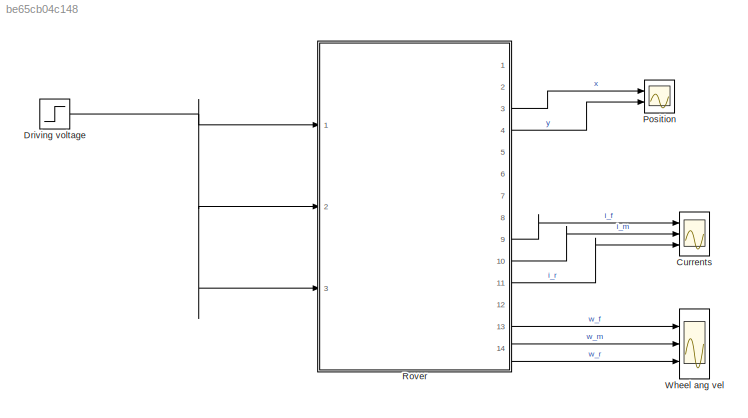
MODEL slx_be65cb04c148
KIND model
CONFIG AbsTol = auto
CONFIG EnableMultiTasking = off
CONFIG FixedStep = auto
CONFIG MaxStep = auto
CONFIG MinStep = auto
CONFIG RelTol = 1e-3
CONFIG SampleTimeConstraint = Unconstrained
CONFIG SolverName = ode23t
CONFIG StartTime = 0.0
CONFIG StopTime = 160
BLOCK [Scope] Currents
  Floating = off
  NumInputPorts = 3
  Ports = [3]
  ScopeSpecificationString = Simulink.scopes.TimeScopeBlockCfg('CurrentConfiguration', extmgr.ConfigurationSet(extmgr.Configuration('Core','General UI',true),extmgr.Configuration('Core','Source UI',true),extmgr.Configuration('Sources','WiredSimulink',true,'DataLoggingVariableName','ScopeData1'),extmgr.Configuration('Visuals','Time Domain',true,'SerializedDisplays',{struct('MinYLimReal','-9.70376','MaxYLimReal','18.45162','YLa...<+1461ch>
BLOCK [Step] Driving voltage
  After = 48
  SampleTime = 0
  Time = 5
BLOCK [Scope] Position
  Floating = off
  NumInputPorts = 2
  Ports = [2]
  ScopeSpecificationString = Simulink.scopes.TimeScopeBlockCfg('CurrentConfiguration', extmgr.ConfigurationSet(extmgr.Configuration('Core','General UI',true),extmgr.Configuration('Core','Source UI',true),extmgr.Configuration('Sources','WiredSimulink',true),extmgr.Configuration('Visuals','Time Domain',true,'SerializedDisplays',{struct('MinYLimReal','-0.56629','MaxYLimReal','5.06434','YLabelReal','','MinYLimMag','0.00000','MaxY...<+1721ch>
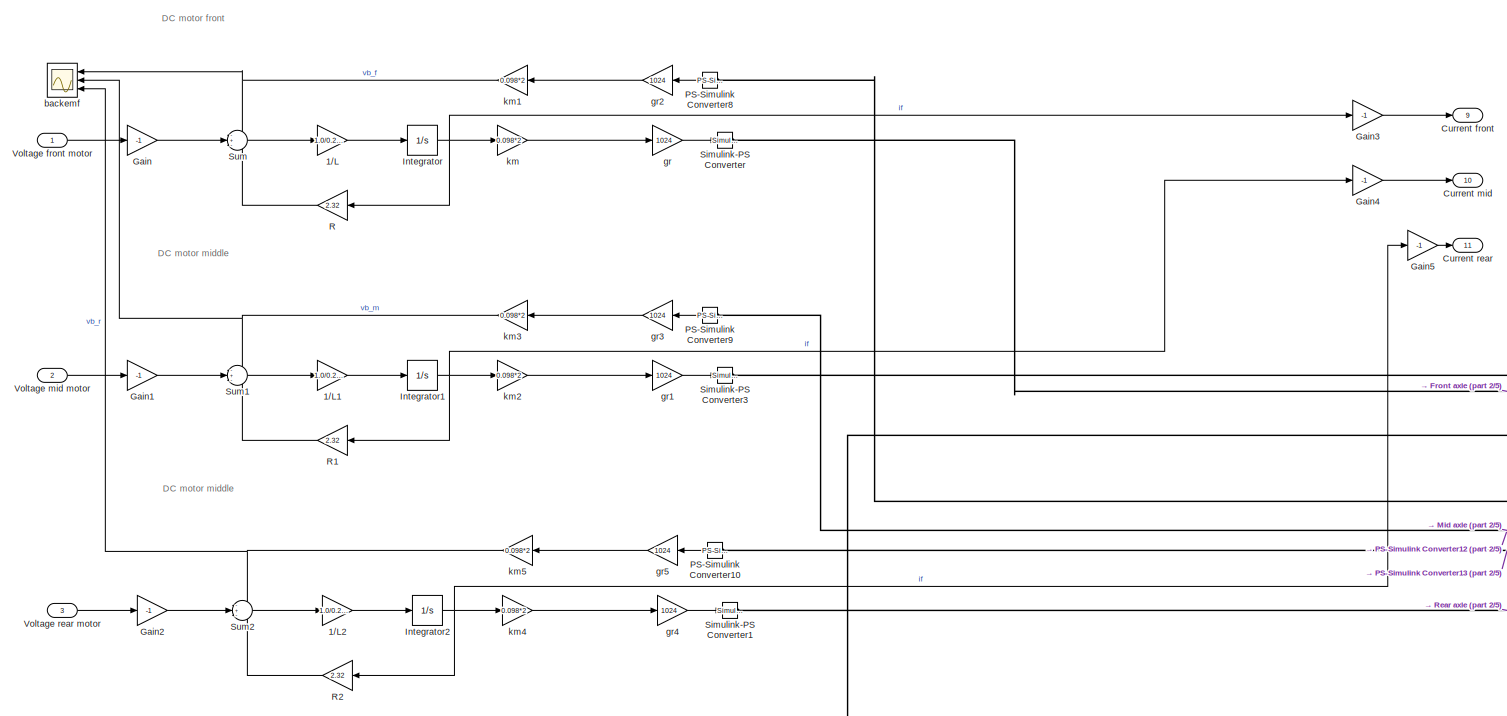
[diagram: Rover - part 1/5, top left region]
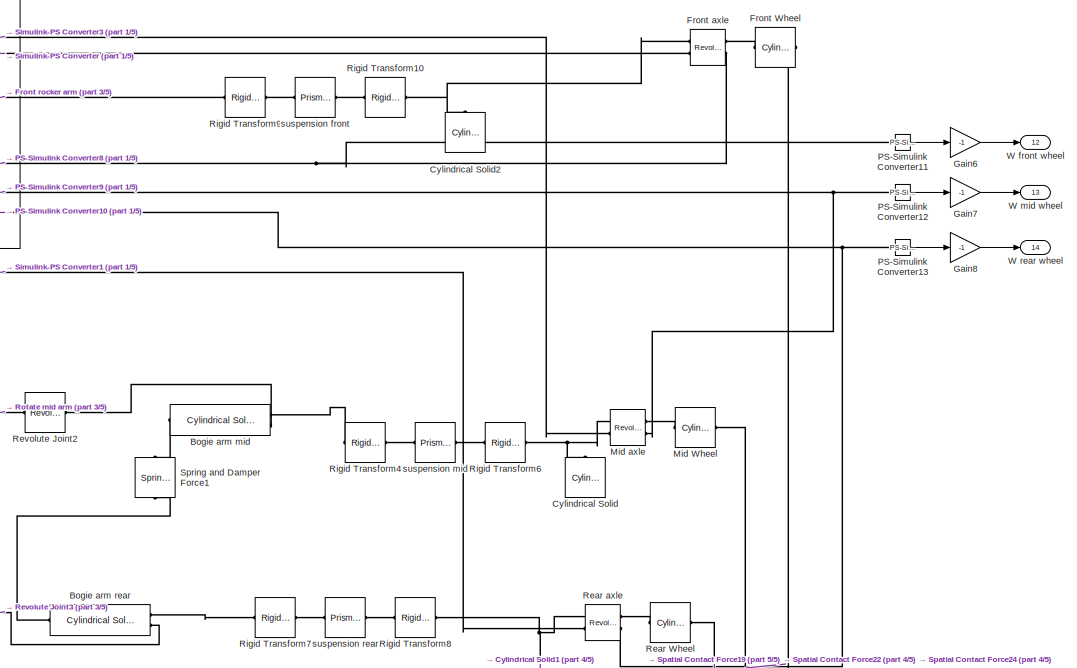
[diagram: Rover - part 2/5, middle right region]
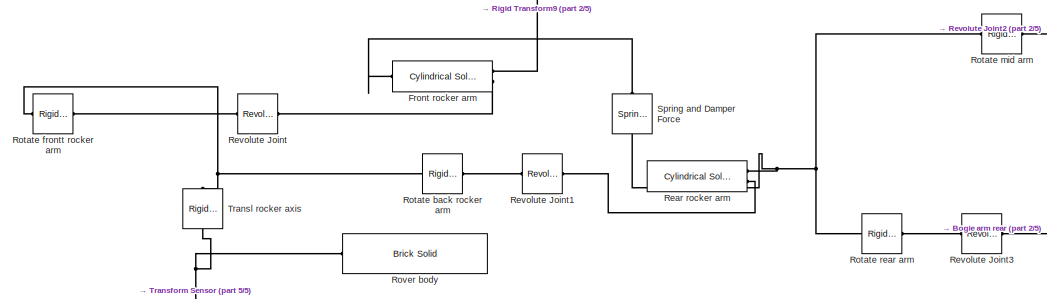
[diagram: Rover - part 3/5, central region]
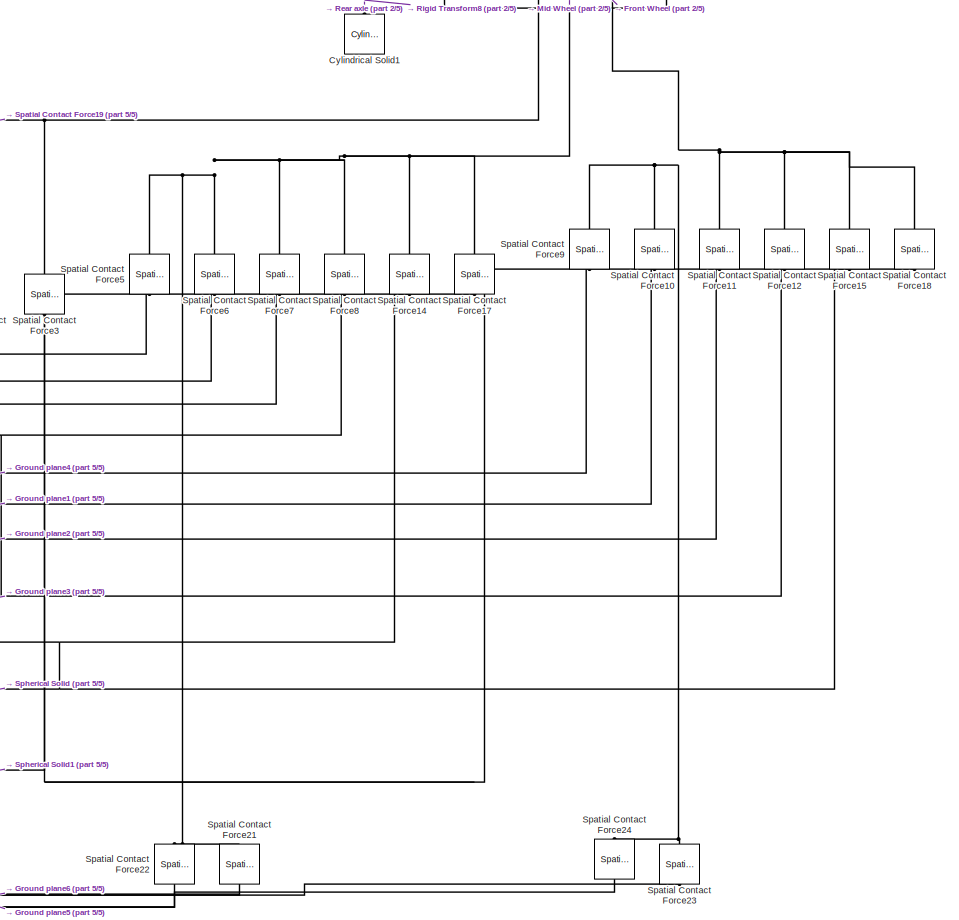
[diagram: Rover - part 4/5, bottom right region]
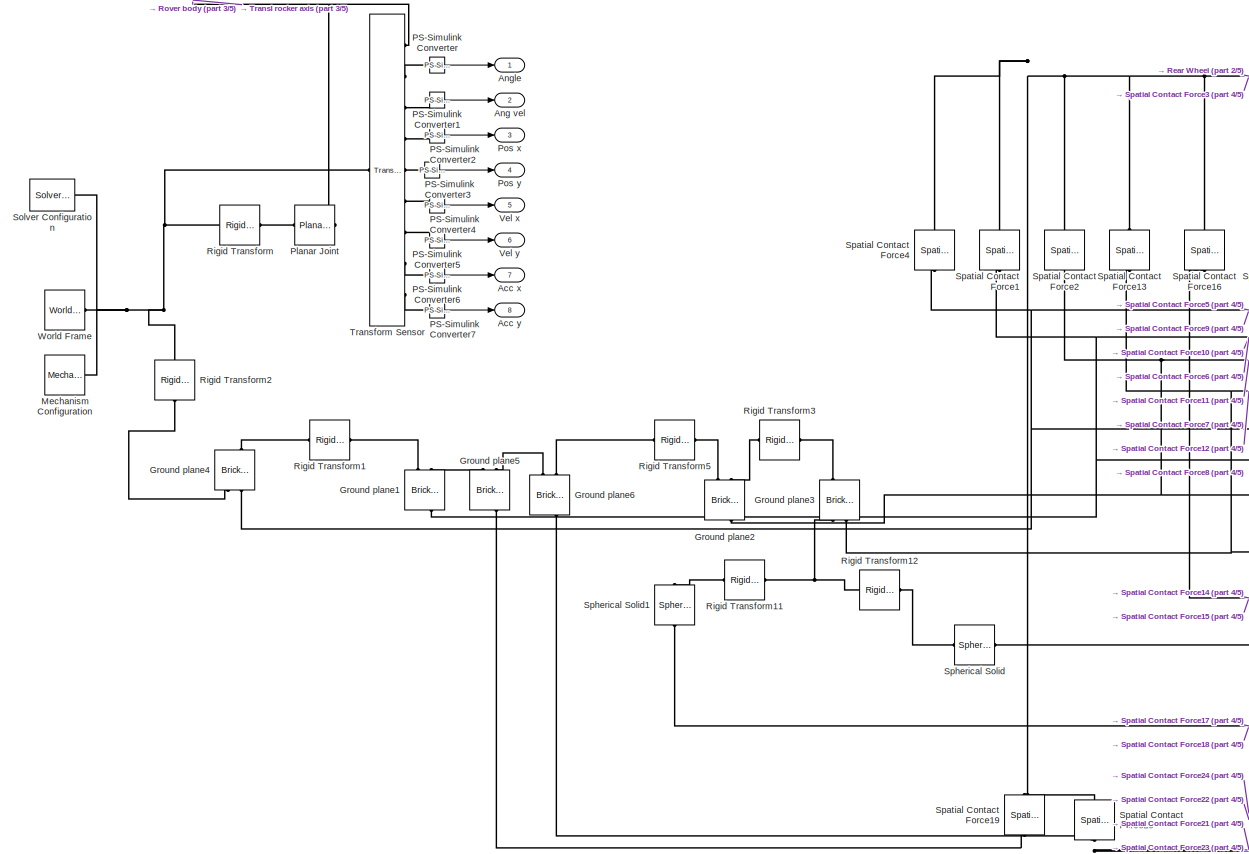
[diagram: Rover - part 5/5, bottom center region]
BLOCK [SubSystem] Rover
  Ports = [3, 14]
  RequestExecContextInheritance = off
BLOCK [Gain] Rover/1//L
  Gain = 1.0/0.238e-3
BLOCK [Gain] Rover/1//L1
  Gain = 1.0/0.238e-3
BLOCK [Gain] Rover/1//L2
  Gain = 1.0/0.238e-3
BLOCK [Outport] Rover/Acc x
  Port = 7
BLOCK [Outport] Rover/Acc y
  Port = 8
BLOCK [Outport] Rover/Ang vel
  Port = 2
BLOCK [Outport] Rover/Angle
BLOCK [Reference] Rover/Bogie arm mid  REF=sm_lib/Body Elements/Cylindrical Solid
  NameLocation = top
  Ports = [0, 0, 0, 0, 0, 2, 1]
  SourceBlock = sm_lib/Body Elements/Cylindrical Solid
  SourceProductBaseCode = MS
  SourceType = Cylindrical Solid
BLOCK [Reference] Rover/Bogie arm rear  REF=sm_lib/Body Elements/Cylindrical Solid
  NameLocation = top
  Ports = [0, 0, 0, 0, 0, 2, 1]
  SourceBlock = sm_lib/Body Elements/Cylindrical Solid
  SourceProductBaseCode = MS
  SourceType = Cylindrical Solid
BLOCK [Outport] Rover/Current front
  Port = 9
BLOCK [Outport] Rover/Current mid
  Port = 10
BLOCK [Outport] Rover/Current rear
  Port = 11
BLOCK [Reference] Rover/Cylindrical Solid  REF=sm_lib/Body Elements/Cylindrical Solid
  NameLocation = right
  Ports = [0, 0, 0, 0, 0, 0, 1]
  SourceBlock = sm_lib/Body Elements/Cylindrical Solid
  SourceProductBaseCode = MS
  SourceType = Cylindrical Solid
BLOCK [Reference] Rover/Cylindrical Solid1  REF=sm_lib/Body Elements/Cylindrical Solid
  NameLocation = right
  Ports = [0, 0, 0, 0, 0, 0, 1]
  SourceBlock = sm_lib/Body Elements/Cylindrical Solid
  SourceProductBaseCode = MS
  SourceType = Cylindrical Solid
BLOCK [Reference] Rover/Cylindrical Solid2  REF=sm_lib/Body Elements/Cylindrical Solid
  NameLocation = right
  Ports = [0, 0, 0, 0, 0, 0, 1]
  SourceBlock = sm_lib/Body Elements/Cylindrical Solid
  SourceProductBaseCode = MS
  SourceType = Cylindrical Solid
BLOCK [Reference] Rover/Front Wheel  REF=sm_lib/Body Elements/Cylindrical Solid
  NameLocation = top
  Ports = [0, 0, 0, 0, 0, 1, 1]
  SourceBlock = sm_lib/Body Elements/Cylindrical Solid
  SourceProductBaseCode = MS
  SourceType = Cylindrical Solid
BLOCK [Reference] Rover/Front axle  REF=sm_lib/Joints/Revolute Joint
  Ports = [0, 0, 0, 0, 0, 2, 2]
  SourceBlock = sm_lib/Joints/Revolute Joint
  SourceProductBaseCode = MS
  SourceType = Revolute Joint
BLOCK [Reference] Rover/Front rocker arm  REF=sm_lib/Body Elements/Cylindrical Solid
  NameLocation = top
  Ports = [0, 0, 0, 0, 0, 2, 1]
  SourceBlock = sm_lib/Body Elements/Cylindrical Solid
  SourceProductBaseCode = MS
  SourceType = Cylindrical Solid
BLOCK [Gain] Rover/Gain
  Gain = -1
BLOCK [Gain] Rover/Gain1
  Gain = -1
BLOCK [Gain] Rover/Gain2
  Gain = -1
BLOCK [Gain] Rover/Gain3
  Gain = -1
BLOCK [Gain] Rover/Gain4
  Gain = -1
BLOCK [Gain] Rover/Gain5
  Gain = -1
BLOCK [Gain] Rover/Gain6
  Gain = -1
BLOCK [Gain] Rover/Gain7
  Gain = -1
BLOCK [Gain] Rover/Gain8
  Gain = -1
BLOCK [Reference] Rover/Ground plane1  REF=sm_lib/Body Elements/Brick Solid
  NameLocation = left
  Ports = [0, 0, 0, 0, 0, 2, 2]
  SourceBlock = sm_lib/Body Elements/Brick Solid
  SourceProductBaseCode = MS
  SourceType = Brick Solid
BLOCK [Reference] Rover/Ground plane2  REF=sm_lib/Body Elements/Brick Solid
  NameLocation = left
  Ports = [0, 0, 0, 0, 0, 2, 2]
  SourceBlock = sm_lib/Body Elements/Brick Solid
  SourceProductBaseCode = MS
  SourceType = Brick Solid
BLOCK [Reference] Rover/Ground plane3  REF=sm_lib/Body Elements/Brick Solid
  NameLocation = left
  Ports = [0, 0, 0, 0, 0, 2, 2]
  SourceBlock = sm_lib/Body Elements/Brick Solid
  SourceProductBaseCode = MS
  SourceType = Brick Solid
BLOCK [Reference] Rover/Ground plane4  REF=sm_lib/Body Elements/Brick Solid
  NameLocation = left
  Ports = [0, 0, 0, 0, 0, 2, 2]
  SourceBlock = sm_lib/Body Elements/Brick Solid
  SourceProductBaseCode = MS
  SourceType = Brick Solid
BLOCK [Reference] Rover/Ground plane5  REF=sm_lib/Body Elements/Brick Solid
  NameLocation = left
  Ports = [0, 0, 0, 0, 0, 2, 2]
  SourceBlock = sm_lib/Body Elements/Brick Solid
  SourceProductBaseCode = MS
  SourceType = Brick Solid
BLOCK [Reference] Rover/Ground plane6  REF=sm_lib/Body Elements/Brick Solid
  NameLocation = top
  Ports = [0, 0, 0, 0, 0, 2, 2]
  SourceBlock = sm_lib/Body Elements/Brick Solid
  SourceProductBaseCode = MS
  SourceType = Brick Solid
BLOCK [Integrator] Rover/Integrator
  Ports = [1, 1]
BLOCK [Integrator] Rover/Integrator1
  Ports = [1, 1]
BLOCK [Integrator] Rover/Integrator2
  Ports = [1, 1]
BLOCK [Reference] Rover/Mechanism Configuration  REF=sm_lib/Utilities/Mechanism
Configuration
  Ports = [0, 0, 0, 0, 0, 0, 1]
  SourceBlock = sm_lib/Utilities/Mechanism\nConfiguration
  SourceProductBaseCode = MS
  SourceType = Mechanism\nConfiguration
BLOCK [Reference] Rover/Mid Wheel  REF=sm_lib/Body Elements/Cylindrical Solid
  NameLocation = top
  Ports = [0, 0, 0, 0, 0, 1, 1]
  SourceBlock = sm_lib/Body Elements/Cylindrical Solid
  SourceProductBaseCode = MS
  SourceType = Cylindrical Solid
BLOCK [Reference] Rover/Mid axle  REF=sm_lib/Joints/Revolute Joint
  Ports = [0, 0, 0, 0, 0, 2, 2]
  SourceBlock = sm_lib/Joints/Revolute Joint
  SourceProductBaseCode = MS
  SourceType = Revolute Joint
BLOCK [Reference] Rover/PS-Simulink Converter  REF=nesl_utility/PS-Simulink
Converter
  Ports = [0, 1, 0, 0, 0, 1]
  SourceBlock = nesl_utility/PS-Simulink\nConverter
  SourceProductBaseCode = PW,SS
  SourceType = PS-Simulink\nConverter
BLOCK [Reference] Rover/PS-Simulink Converter1  REF=nesl_utility/PS-Simulink
Converter
  Ports = [0, 1, 0, 0, 0, 1]
  SourceBlock = nesl_utility/PS-Simulink\nConverter
  SourceProductBaseCode = PW,SS
  SourceType = PS-Simulink\nConverter
BLOCK [Reference] Rover/PS-Simulink Converter10  REF=nesl_utility/PS-Simulink
Converter
  NameLocation = top
  Ports = [0, 1, 0, 0, 0, 1]
  SourceBlock = nesl_utility/PS-Simulink\nConverter
  SourceProductBaseCode = PW,SS
  SourceType = PS-Simulink\nConverter
BLOCK [Reference] Rover/PS-Simulink Converter11  REF=nesl_utility/PS-Simulink
Converter
  Ports = [0, 1, 0, 0, 0, 1]
  SourceBlock = nesl_utility/PS-Simulink\nConverter
  SourceProductBaseCode = PW,SS
  SourceType = PS-Simulink\nConverter
BLOCK [Reference] Rover/PS-Simulink Converter12  REF=nesl_utility/PS-Simulink
Converter
  Ports = [0, 1, 0, 0, 0, 1]
  SourceBlock = nesl_utility/PS-Simulink\nConverter
  SourceProductBaseCode = PW,SS
  SourceType = PS-Simulink\nConverter
BLOCK [Reference] Rover/PS-Simulink Converter13  REF=nesl_utility/PS-Simulink
Converter
  Ports = [0, 1, 0, 0, 0, 1]
  SourceBlock = nesl_utility/PS-Simulink\nConverter
  SourceProductBaseCode = PW,SS
  SourceType = PS-Simulink\nConverter
BLOCK [Reference] Rover/PS-Simulink Converter2  REF=nesl_utility/PS-Simulink
Converter
  Ports = [0, 1, 0, 0, 0, 1]
  SourceBlock = nesl_utility/PS-Simulink\nConverter
  SourceProductBaseCode = PW,SS
  SourceType = PS-Simulink\nConverter
BLOCK [Reference] Rover/PS-Simulink Converter3  REF=nesl_utility/PS-Simulink
Converter
  Ports = [0, 1, 0, 0, 0, 1]
  SourceBlock = nesl_utility/PS-Simulink\nConverter
  SourceProductBaseCode = PW,SS
  SourceType = PS-Simulink\nConverter
BLOCK [Reference] Rover/PS-Simulink Converter4  REF=nesl_utility/PS-Simulink
Converter
  Ports = [0, 1, 0, 0, 0, 1]
  SourceBlock = nesl_utility/PS-Simulink\nConverter
  SourceProductBaseCode = PW,SS
  SourceType = PS-Simulink\nConverter
BLOCK [Reference] Rover/PS-Simulink Converter5  REF=nesl_utility/PS-Simulink
Converter
  Ports = [0, 1, 0, 0, 0, 1]
  SourceBlock = nesl_utility/PS-Simulink\nConverter
  SourceProductBaseCode = PW,SS
  SourceType = PS-Simulink\nConverter
BLOCK [Reference] Rover/PS-Simulink Converter6  REF=nesl_utility/PS-Simulink
Converter
  Ports = [0, 1, 0, 0, 0, 1]
  SourceBlock = nesl_utility/PS-Simulink\nConverter
  SourceProductBaseCode = PW,SS
  SourceType = PS-Simulink\nConverter
BLOCK [Reference] Rover/PS-Simulink Converter7  REF=nesl_utility/PS-Simulink
Converter
  Ports = [0, 1, 0, 0, 0, 1]
  SourceBlock = nesl_utility/PS-Simulink\nConverter
  SourceProductBaseCode = PW,SS
  SourceType = PS-Simulink\nConverter
BLOCK [Reference] Rover/PS-Simulink Converter8  REF=nesl_utility/PS-Simulink
Converter
  NameLocation = top
  Ports = [0, 1, 0, 0, 0, 1]
  SourceBlock = nesl_utility/PS-Simulink\nConverter
  SourceProductBaseCode = PW,SS
  SourceType = PS-Simulink\nConverter
BLOCK [Reference] Rover/PS-Simulink Converter9  REF=nesl_utility/PS-Simulink
Converter
  NameLocation = top
  Ports = [0, 1, 0, 0, 0, 1]
  SourceBlock = nesl_utility/PS-Simulink\nConverter
  SourceProductBaseCode = PW,SS
  SourceType = PS-Simulink\nConverter
BLOCK [Reference] Rover/Planar Joint  REF=sm_lib/Joints/Planar Joint
  Ports = [0, 0, 0, 0, 0, 1, 1]
  SourceBlock = sm_lib/Joints/Planar Joint
  SourceProductBaseCode = MS
  SourceType = Planar Joint
BLOCK [Outport] Rover/Pos x
  Port = 3
BLOCK [Outport] Rover/Pos y
  Port = 4
BLOCK [Gain] Rover/R
  Gain = 2.32
BLOCK [Gain] Rover/R1
  Gain = 2.32
BLOCK [Gain] Rover/R2
  Gain = 2.32
BLOCK [Reference] Rover/Rear Wheel  REF=sm_lib/Body Elements/Cylindrical Solid
  NameLocation = top
  Ports = [0, 0, 0, 0, 0, 1, 1]
  SourceBlock = sm_lib/Body Elements/Cylindrical Solid
  SourceProductBaseCode = MS
  SourceType = Cylindrical Solid
BLOCK [Reference] Rover/Rear axle  REF=sm_lib/Joints/Revolute Joint
  Ports = [0, 0, 0, 0, 0, 2, 2]
  SourceBlock = sm_lib/Joints/Revolute Joint
  SourceProductBaseCode = MS
  SourceType = Revolute Joint
BLOCK [Reference] Rover/Rear rocker arm  REF=sm_lib/Body Elements/Cylindrical Solid
  NameLocation = top
  Ports = [0, 0, 0, 0, 0, 2, 1]
  SourceBlock = sm_lib/Body Elements/Cylindrical Solid
  SourceProductBaseCode = MS
  SourceType = Cylindrical Solid
BLOCK [Reference] Rover/Revolute Joint  REF=sm_lib/Joints/Revolute Joint
  Ports = [0, 0, 0, 0, 0, 1, 1]
  SourceBlock = sm_lib/Joints/Revolute Joint
  SourceProductBaseCode = MS
  SourceType = Revolute Joint
BLOCK [Reference] Rover/Revolute Joint1  REF=sm_lib/Joints/Revolute Joint
  Ports = [0, 0, 0, 0, 0, 1, 1]
  SourceBlock = sm_lib/Joints/Revolute Joint
  SourceProductBaseCode = MS
  SourceType = Revolute Joint
BLOCK [Reference] Rover/Revolute Joint2  REF=sm_lib/Joints/Revolute Joint
  Ports = [0, 0, 0, 0, 0, 1, 1]
  SourceBlock = sm_lib/Joints/Revolute Joint
  SourceProductBaseCode = MS
  SourceType = Revolute Joint
BLOCK [Reference] Rover/Revolute Joint3  REF=sm_lib/Joints/Revolute Joint
  Ports = [0, 0, 0, 0, 0, 1, 1]
  SourceBlock = sm_lib/Joints/Revolute Joint
  SourceProductBaseCode = MS
  SourceType = Revolute Joint
BLOCK [Reference] Rover/Rigid Transform  REF=sm_lib/Frames and
Transforms/Rigid
Transform
  Ports = [0, 0, 0, 0, 0, 1, 1]
  SourceBlock = sm_lib/Frames and\nTransforms/Rigid\nTransform
  SourceProductBaseCode = MS
  SourceType = Rigid\nTransform
BLOCK [Reference] Rover/Rigid Transform1  REF=sm_lib/Frames and
Transforms/Rigid
Transform
  Ports = [0, 0, 0, 0, 0, 1, 1]
  SourceBlock = sm_lib/Frames and\nTransforms/Rigid\nTransform
  SourceProductBaseCode = MS
  SourceType = Rigid\nTransform
BLOCK [Reference] Rover/Rigid Transform10  REF=sm_lib/Frames and
Transforms/Rigid
Transform
  Ports = [0, 0, 0, 0, 0, 1, 1]
  SourceBlock = sm_lib/Frames and\nTransforms/Rigid\nTransform
  SourceProductBaseCode = MS
  SourceType = Rigid\nTransform
BLOCK [Reference] Rover/Rigid Transform11  REF=sm_lib/Frames and
Transforms/Rigid
Transform
  NameLocation = top
  Ports = [0, 0, 0, 0, 0, 1, 1]
  SourceBlock = sm_lib/Frames and\nTransforms/Rigid\nTransform
  SourceProductBaseCode = MS
  SourceType = Rigid\nTransform
BLOCK [Reference] Rover/Rigid Transform12  REF=sm_lib/Frames and
Transforms/Rigid
Transform
  Ports = [0, 0, 0, 0, 0, 1, 1]
  SourceBlock = sm_lib/Frames and\nTransforms/Rigid\nTransform
  SourceProductBaseCode = MS
  SourceType = Rigid\nTransform
BLOCK [Reference] Rover/Rigid Transform2  REF=sm_lib/Frames and
Transforms/Rigid
Transform
  NameLocation = left
  Ports = [0, 0, 0, 0, 0, 1, 1]
  SourceBlock = sm_lib/Frames and\nTransforms/Rigid\nTransform
  SourceProductBaseCode = MS
  SourceType = Rigid\nTransform
BLOCK [Reference] Rover/Rigid Transform3  REF=sm_lib/Frames and
Transforms/Rigid
Transform
  Ports = [0, 0, 0, 0, 0, 1, 1]
  SourceBlock = sm_lib/Frames and\nTransforms/Rigid\nTransform
  SourceProductBaseCode = MS
  SourceType = Rigid\nTransform
BLOCK [Reference] Rover/Rigid Transform4  REF=sm_lib/Frames and
Transforms/Rigid
Transform
  Ports = [0, 0, 0, 0, 0, 1, 1]
  SourceBlock = sm_lib/Frames and\nTransforms/Rigid\nTransform
  SourceProductBaseCode = MS
  SourceType = Rigid\nTransform
BLOCK [Reference] Rover/Rigid Transform5  REF=sm_lib/Frames and
Transforms/Rigid
Transform
  Ports = [0, 0, 0, 0, 0, 1, 1]
  SourceBlock = sm_lib/Frames and\nTransforms/Rigid\nTransform
  SourceProductBaseCode = MS
  SourceType = Rigid\nTransform
BLOCK [Reference] Rover/Rigid Transform6  REF=sm_lib/Frames and
Transforms/Rigid
Transform
  Ports = [0, 0, 0, 0, 0, 1, 1]
  SourceBlock = sm_lib/Frames and\nTransforms/Rigid\nTransform
  SourceProductBaseCode = MS
  SourceType = Rigid\nTransform
BLOCK [Reference] Rover/Rigid Transform7  REF=sm_lib/Frames and
Transforms/Rigid
Transform
  Ports = [0, 0, 0, 0, 0, 1, 1]
  SourceBlock = sm_lib/Frames and\nTransforms/Rigid\nTransform
  SourceProductBaseCode = MS
  SourceType = Rigid\nTransform
BLOCK [Reference] Rover/Rigid Transform8  REF=sm_lib/Frames and
Transforms/Rigid
Transform
  Ports = [0, 0, 0, 0, 0, 1, 1]
  SourceBlock = sm_lib/Frames and\nTransforms/Rigid\nTransform
  SourceProductBaseCode = MS
  SourceType = Rigid\nTransform
BLOCK [Reference] Rover/Rigid Transform9  REF=sm_lib/Frames and
Transforms/Rigid
Transform
  Ports = [0, 0, 0, 0, 0, 1, 1]
  SourceBlock = sm_lib/Frames and\nTransforms/Rigid\nTransform
  SourceProductBaseCode = MS
  SourceType = Rigid\nTransform
BLOCK [Reference] Rover/Rotate back rocker arm  REF=sm_lib/Frames and
Transforms/Rigid
Transform
  Ports = [0, 0, 0, 0, 0, 1, 1]
  SourceBlock = sm_lib/Frames and\nTransforms/Rigid\nTransform
  SourceProductBaseCode = MS
  SourceType = Rigid\nTransform
BLOCK [Reference] Rover/Rotate frontt rocker arm  REF=sm_lib/Frames and
Transforms/Rigid
Transform
  Ports = [0, 0, 0, 0, 0, 1, 1]
  SourceBlock = sm_lib/Frames and\nTransforms/Rigid\nTransform
  SourceProductBaseCode = MS
  SourceType = Rigid\nTransform
BLOCK [Reference] Rover/Rotate mid arm  REF=sm_lib/Frames and
Transforms/Rigid
Transform
  Ports = [0, 0, 0, 0, 0, 1, 1]
  SourceBlock = sm_lib/Frames and\nTransforms/Rigid\nTransform
  SourceProductBaseCode = MS
  SourceType = Rigid\nTransform
BLOCK [Reference] Rover/Rotate rear arm  REF=sm_lib/Frames and
Transforms/Rigid
Transform
  Ports = [0, 0, 0, 0, 0, 1, 1]
  SourceBlock = sm_lib/Frames and\nTransforms/Rigid\nTransform
  SourceProductBaseCode = MS
  SourceType = Rigid\nTransform
BLOCK [Reference] Rover/Rover body  REF=sm_lib/Body Elements/Brick Solid
  NameLocation = top
  Ports = [0, 0, 0, 0, 0, 0, 1]
  SourceBlock = sm_lib/Body Elements/Brick Solid
  SourceProductBaseCode = MS
  SourceType = Brick Solid
BLOCK [Reference] Rover/Simulink-PS Converter  REF=nesl_utility/Simulink-PS
Converter
  Ports = [1, 0, 0, 0, 0, 0, 1]
  SourceBlock = nesl_utility/Simulink-PS\nConverter
  SourceProductBaseCode = PW,SS
  SourceType = Simulink-PS\nConverter
BLOCK [Reference] Rover/Simulink-PS Converter1  REF=nesl_utility/Simulink-PS
Converter
  Ports = [1, 0, 0, 0, 0, 0, 1]
  SourceBlock = nesl_utility/Simulink-PS\nConverter
  SourceProductBaseCode = PW,SS
  SourceType = Simulink-PS\nConverter
BLOCK [Reference] Rover/Simulink-PS Converter3  REF=nesl_utility/Simulink-PS
Converter
  Ports = [1, 0, 0, 0, 0, 0, 1]
  SourceBlock = nesl_utility/Simulink-PS\nConverter
  SourceProductBaseCode = PW,SS
  SourceType = Simulink-PS\nConverter
BLOCK [Reference] Rover/Solver Configuration  REF=nesl_utility/Solver
Configuration
  Ports = [0, 0, 0, 0, 0, 0, 1]
  SourceBlock = nesl_utility/Solver\nConfiguration
  SourceProductBaseCode = PW,SS
  SourceType = Solver\nConfiguration
BLOCK [Reference] Rover/Spatial Contact Force1  REF=sm_lib/Forces and
Torques/Spatial
Contact Force
  NameLocation = right
  Ports = [0, 0, 0, 0, 0, 1, 1]
  SourceBlock = sm_lib/Forces and\nTorques/Spatial\nContact Force
  SourceProductBaseCode = MS
  SourceType = Spatial\nContact Force
BLOCK [Reference] Rover/Spatial Contact Force10  REF=sm_lib/Forces and
Torques/Spatial
Contact Force
  NameLocation = right
  Ports = [0, 0, 0, 0, 0, 1, 1]
  SourceBlock = sm_lib/Forces and\nTorques/Spatial\nContact Force
  SourceProductBaseCode = MS
  SourceType = Spatial\nContact Force
BLOCK [Reference] Rover/Spatial Contact Force11  REF=sm_lib/Forces and
Torques/Spatial
Contact Force
  NameLocation = right
  Ports = [0, 0, 0, 0, 0, 1, 1]
  SourceBlock = sm_lib/Forces and\nTorques/Spatial\nContact Force
  SourceProductBaseCode = MS
  SourceType = Spatial\nContact Force
BLOCK [Reference] Rover/Spatial Contact Force12  REF=sm_lib/Forces and
Torques/Spatial
Contact Force
  NameLocation = right
  Ports = [0, 0, 0, 0, 0, 1, 1]
  SourceBlock = sm_lib/Forces and\nTorques/Spatial\nContact Force
  SourceProductBaseCode = MS
  SourceType = Spatial\nContact Force
BLOCK [Reference] Rover/Spatial Contact Force13  REF=sm_lib/Forces and
Torques/Spatial
Contact Force
  NameLocation = right
  Ports = [0, 0, 0, 0, 0, 1, 1]
  SourceBlock = sm_lib/Forces and\nTorques/Spatial\nContact Force
  SourceProductBaseCode = MS
  SourceType = Spatial\nContact Force
BLOCK [Reference] Rover/Spatial Contact Force14  REF=sm_lib/Forces and
Torques/Spatial
Contact Force
  NameLocation = right
  Ports = [0, 0, 0, 0, 0, 1, 1]
  SourceBlock = sm_lib/Forces and\nTorques/Spatial\nContact Force
  SourceProductBaseCode = MS
  SourceType = Spatial\nContact Force
BLOCK [Reference] Rover/Spatial Contact Force15  REF=sm_lib/Forces and
Torques/Spatial
Contact Force
  NameLocation = right
  Ports = [0, 0, 0, 0, 0, 1, 1]
  SourceBlock = sm_lib/Forces and\nTorques/Spatial\nContact Force
  SourceProductBaseCode = MS
  SourceType = Spatial\nContact Force
BLOCK [Reference] Rover/Spatial Contact Force16  REF=sm_lib/Forces and
Torques/Spatial
Contact Force
  NameLocation = right
  Ports = [0, 0, 0, 0, 0, 1, 1]
  SourceBlock = sm_lib/Forces and\nTorques/Spatial\nContact Force
  SourceProductBaseCode = MS
  SourceType = Spatial\nContact Force
BLOCK [Reference] Rover/Spatial Contact Force17  REF=sm_lib/Forces and
Torques/Spatial
Contact Force
  NameLocation = right
  Ports = [0, 0, 0, 0, 0, 1, 1]
  SourceBlock = sm_lib/Forces and\nTorques/Spatial\nContact Force
  SourceProductBaseCode = MS
  SourceType = Spatial\nContact Force
BLOCK [Reference] Rover/Spatial Contact Force18  REF=sm_lib/Forces and
Torques/Spatial
Contact Force
  NameLocation = right
  Ports = [0, 0, 0, 0, 0, 1, 1]
  SourceBlock = sm_lib/Forces and\nTorques/Spatial\nContact Force
  SourceProductBaseCode = MS
  SourceType = Spatial\nContact Force
BLOCK [Reference] Rover/Spatial Contact Force19  REF=sm_lib/Forces and
Torques/Spatial
Contact Force
  NameLocation = right
  Ports = [0, 0, 0, 0, 0, 1, 1]
  SourceBlock = sm_lib/Forces and\nTorques/Spatial\nContact Force
  SourceProductBaseCode = MS
  SourceType = Spatial\nContact Force
BLOCK [Reference] Rover/Spatial Contact Force2  REF=sm_lib/Forces and
Torques/Spatial
Contact Force
  NameLocation = right
  Ports = [0, 0, 0, 0, 0, 1, 1]
  SourceBlock = sm_lib/Forces and\nTorques/Spatial\nContact Force
  SourceProductBaseCode = MS
  SourceType = Spatial\nContact Force
BLOCK [Reference] Rover/Spatial Contact Force20  REF=sm_lib/Forces and
Torques/Spatial
Contact Force
  NameLocation = right
  Ports = [0, 0, 0, 0, 0, 1, 1]
  SourceBlock = sm_lib/Forces and\nTorques/Spatial\nContact Force
  SourceProductBaseCode = MS
  SourceType = Spatial\nContact Force
BLOCK [Reference] Rover/Spatial Contact Force21  REF=sm_lib/Forces and
Torques/Spatial
Contact Force
  NameLocation = right
  Ports = [0, 0, 0, 0, 0, 1, 1]
  SourceBlock = sm_lib/Forces and\nTorques/Spatial\nContact Force
  SourceProductBaseCode = MS
  SourceType = Spatial\nContact Force
BLOCK [Reference] Rover/Spatial Contact Force22  REF=sm_lib/Forces and
Torques/Spatial
Contact Force
  NameLocation = right
  Ports = [0, 0, 0, 0, 0, 1, 1]
  SourceBlock = sm_lib/Forces and\nTorques/Spatial\nContact Force
  SourceProductBaseCode = MS
  SourceType = Spatial\nContact Force
BLOCK [Reference] Rover/Spatial Contact Force23  REF=sm_lib/Forces and
Torques/Spatial
Contact Force
  NameLocation = right
  Ports = [0, 0, 0, 0, 0, 1, 1]
  SourceBlock = sm_lib/Forces and\nTorques/Spatial\nContact Force
  SourceProductBaseCode = MS
  SourceType = Spatial\nContact Force
BLOCK [Reference] Rover/Spatial Contact Force24  REF=sm_lib/Forces and
Torques/Spatial
Contact Force
  NameLocation = right
  Ports = [0, 0, 0, 0, 0, 1, 1]
  SourceBlock = sm_lib/Forces and\nTorques/Spatial\nContact Force
  SourceProductBaseCode = MS
  SourceType = Spatial\nContact Force
BLOCK [Reference] Rover/Spatial Contact Force3  REF=sm_lib/Forces and
Torques/Spatial
Contact Force
  NameLocation = right
  Ports = [0, 0, 0, 0, 0, 1, 1]
  SourceBlock = sm_lib/Forces and\nTorques/Spatial\nContact Force
  SourceProductBaseCode = MS
  SourceType = Spatial\nContact Force
BLOCK [Reference] Rover/Spatial Contact Force4  REF=sm_lib/Forces and
Torques/Spatial
Contact Force
  NameLocation = right
  Ports = [0, 0, 0, 0, 0, 1, 1]
  SourceBlock = sm_lib/Forces and\nTorques/Spatial\nContact Force
  SourceProductBaseCode = MS
  SourceType = Spatial\nContact Force
BLOCK [Reference] Rover/Spatial Contact Force5  REF=sm_lib/Forces and
Torques/Spatial
Contact Force
  NameLocation = right
  Ports = [0, 0, 0, 0, 0, 1, 1]
  SourceBlock = sm_lib/Forces and\nTorques/Spatial\nContact Force
  SourceProductBaseCode = MS
  SourceType = Spatial\nContact Force
BLOCK [Reference] Rover/Spatial Contact Force6  REF=sm_lib/Forces and
Torques/Spatial
Contact Force
  NameLocation = right
  Ports = [0, 0, 0, 0, 0, 1, 1]
  SourceBlock = sm_lib/Forces and\nTorques/Spatial\nContact Force
  SourceProductBaseCode = MS
  SourceType = Spatial\nContact Force
BLOCK [Reference] Rover/Spatial Contact Force7  REF=sm_lib/Forces and
Torques/Spatial
Contact Force
  NameLocation = right
  Ports = [0, 0, 0, 0, 0, 1, 1]
  SourceBlock = sm_lib/Forces and\nTorques/Spatial\nContact Force
  SourceProductBaseCode = MS
  SourceType = Spatial\nContact Force
BLOCK [Reference] Rover/Spatial Contact Force8  REF=sm_lib/Forces and
Torques/Spatial
Contact Force
  NameLocation = right
  Ports = [0, 0, 0, 0, 0, 1, 1]
  SourceBlock = sm_lib/Forces and\nTorques/Spatial\nContact Force
  SourceProductBaseCode = MS
  SourceType = Spatial\nContact Force
BLOCK [Reference] Rover/Spatial Contact Force9  REF=sm_lib/Forces and
Torques/Spatial
Contact Force
  NameLocation = right
  Ports = [0, 0, 0, 0, 0, 1, 1]
  SourceBlock = sm_lib/Forces and\nTorques/Spatial\nContact Force
  SourceProductBaseCode = MS
  SourceType = Spatial\nContact Force
BLOCK [Reference] Rover/Spherical Solid  REF=sm_lib/Body Elements/Spherical Solid
  NameLocation = top
  Ports = [0, 0, 0, 0, 0, 1, 1]
  SourceBlock = sm_lib/Body Elements/Spherical Solid
  SourceProductBaseCode = MS
  SourceType = Spherical Solid
BLOCK [Reference] Rover/Spherical Solid1  REF=sm_lib/Body Elements/Spherical Solid
  NameLocation = right
  Ports = [0, 0, 0, 0, 0, 1, 1]
  SourceBlock = sm_lib/Body Elements/Spherical Solid
  SourceProductBaseCode = MS
  SourceType = Spherical Solid
BLOCK [Reference] Rover/Spring and Damper Force  REF=sm_lib/Forces and
Torques/Spring and
Damper Force
  NameLocation = left
  Ports = [0, 0, 0, 0, 0, 1, 1]
  SourceBlock = sm_lib/Forces and\nTorques/Spring and\nDamper Force
  SourceProductBaseCode = MS
  SourceType = Spring and\nDamper Force
BLOCK [Reference] Rover/Spring and Damper Force1  REF=sm_lib/Forces and
Torques/Spring and
Damper Force
  NameLocation = left
  Ports = [0, 0, 0, 0, 0, 1, 1]
  SourceBlock = sm_lib/Forces and\nTorques/Spring and\nDamper Force
  SourceProductBaseCode = MS
  SourceType = Spring and\nDamper Force
BLOCK [Sum] Rover/Sum
  Inputs = -+-
  Ports = [3, 1]
BLOCK [Sum] Rover/Sum1
  Inputs = -+-
  Ports = [3, 1]
BLOCK [Sum] Rover/Sum2
  Inputs = -+-
  Ports = [3, 1]
BLOCK [Reference] Rover/Transform Sensor  REF=sm_lib/Frames and
Transforms/Transform
Sensor
  Ports = [0, 0, 0, 0, 0, 1, 9]
  SourceBlock = sm_lib/Frames and\nTransforms/Transform\nSensor
  SourceProductBaseCode = MS
  SourceType = Transform\nSensor
BLOCK [Reference] Rover/Transl rocker axis  REF=sm_lib/Frames and
Transforms/Rigid
Transform
  NameLocation = right
  Ports = [0, 0, 0, 0, 0, 1, 1]
  SourceBlock = sm_lib/Frames and\nTransforms/Rigid\nTransform
  SourceProductBaseCode = MS
  SourceType = Rigid\nTransform
BLOCK [Outport] Rover/Vel x
  Port = 5
BLOCK [Outport] Rover/Vel y
  Port = 6
BLOCK [Inport] Rover/Voltage front motor
BLOCK [Inport] Rover/Voltage mid motor
  Port = 2
BLOCK [Inport] Rover/Voltage rear motor
  NameLocation = left
  Port = 3
BLOCK [Outport] Rover/W front wheel
  Port = 12
BLOCK [Outport] Rover/W mid wheel
  Port = 13
BLOCK [Outport] Rover/W rear wheel
  Port = 14
BLOCK [Reference] Rover/World Frame  REF=sm_lib/Frames and
Transforms/World Frame
  Ports = [0, 0, 0, 0, 0, 0, 1]
  SourceBlock = sm_lib/Frames and\nTransforms/World Frame
  SourceProductBaseCode = MS
  SourceType = World Frame
BLOCK [Scope] Rover/backemf
  Floating = off
  NumInputPorts = 3
  Ports = [3]
  ScopeSpecificationString = Simulink.scopes.TimeScopeBlockCfg('CurrentConfiguration', extmgr.ConfigurationSet(extmgr.Configuration('Core','General UI',true),extmgr.Configuration('Core','Source UI',true),extmgr.Configuration('Sources','WiredSimulink',true,'DataLoggingVariableName','ScopeData1'),extmgr.Configuration('Visuals','Time Domain',true,'SerializedDisplays',{struct('MinYLimReal','-79.67064','MaxYLimReal','27.53517','YL...<+1444ch>
BLOCK [Gain] Rover/gr
  Gain = 1024
BLOCK [Gain] Rover/gr1
  Gain = 1024
BLOCK [Gain] Rover/gr2
  Gain = 1024
  NameLocation = top
BLOCK [Gain] Rover/gr3
  Gain = 1024
  NameLocation = top
BLOCK [Gain] Rover/gr4
  Gain = 1024
BLOCK [Gain] Rover/gr5
  Gain = 1024
  NameLocation = top
BLOCK [Gain] Rover/km
  Gain = 0.098*2
BLOCK [Gain] Rover/km1
  Gain = 0.098*2
BLOCK [Gain] Rover/km2
  Gain = 0.098*2
BLOCK [Gain] Rover/km3
  Gain = 0.098*2
BLOCK [Gain] Rover/km4
  Gain = 0.098*2
BLOCK [Gain] Rover/km5
  Gain = 0.098*2
BLOCK [Reference] Rover/suspension front  REF=sm_lib/Joints/Prismatic
Joint
  Ports = [0, 0, 0, 0, 0, 1, 1]
  SourceBlock = sm_lib/Joints/Prismatic\nJoint
  SourceProductBaseCode = MS
  SourceType = Prismatic\nJoint
BLOCK [Reference] Rover/suspension mid  REF=sm_lib/Joints/Prismatic
Joint
  Ports = [0, 0, 0, 0, 0, 1, 1]
  SourceBlock = sm_lib/Joints/Prismatic\nJoint
  SourceProductBaseCode = MS
  SourceType = Prismatic\nJoint
BLOCK [Reference] Rover/suspension rear  REF=sm_lib/Joints/Prismatic
Joint
  Ports = [0, 0, 0, 0, 0, 1, 1]
  SourceBlock = sm_lib/Joints/Prismatic\nJoint
  SourceProductBaseCode = MS
  SourceType = Prismatic\nJoint
BLOCK [Scope] Wheel ang vel
  Floating = off
  NumInputPorts = 3
  Ports = [3]
  ScopeSpecificationString = Simulink.scopes.TimeScopeBlockCfg('CurrentConfiguration', extmgr.ConfigurationSet(extmgr.Configuration('Core','General UI',true),extmgr.Configuration('Core','Source UI',true),extmgr.Configuration('Sources','WiredSimulink',true,'DataLoggingVariableName','ScopeData2'),extmgr.Configuration('Visuals','Time Domain',true,'SerializedDisplays',{struct('MinYLimReal','-0.13719','MaxYLimReal','0.39696','YLab...<+1453ch>
ANNOTATION Rover: DC motor front
ANNOTATION Rover: DC motor middle
NET Driving voltage:1 -> Rover:1, Rover:2, Rover:3
LINE Rover/1//L1:1 -> Rover/Integrator1:1
LINE Rover/1//L2:1 -> Rover/Integrator2:1
LINE Rover/1//L:1 -> Rover/Integrator:1
LINE Rover/Gain1:1 -> Rover/Sum1:2
LINE Rover/Gain2:1 -> Rover/Sum2:2
LINE Rover/Gain3:1 -> Rover/Current front:1
LINE Rover/Gain4:1 -> Rover/Current mid:1
LINE Rover/Gain5:1 -> Rover/Current rear:1
LINE Rover/Gain6:1 -> Rover/W front wheel:1
LINE Rover/Gain7:1 -> Rover/W mid wheel:1
LINE Rover/Gain8:1 -> Rover/W rear wheel:1
LINE Rover/Gain:1 -> Rover/Sum:2
NET Rover/Integrator1:1 -> Rover/Gain4:1, Rover/R1:1, Rover/km2:1
NET Rover/Integrator2:1 -> Rover/Gain5:1, Rover/R2:1, Rover/km4:1
NET Rover/Integrator:1 -> Rover/Gain3:1, Rover/R:1, Rover/km:1
LINE Rover/PS-Simulink Converter10:1 -> Rover/gr5:1
LINE Rover/PS-Simulink Converter11:1 -> Rover/Gain6:1
LINE Rover/PS-Simulink Converter12:1 -> Rover/Gain7:1
LINE Rover/PS-Simulink Converter13:1 -> Rover/Gain8:1
LINE Rover/PS-Simulink Converter1:1 -> Rover/Ang vel:1
LINE Rover/PS-Simulink Converter2:1 -> Rover/Pos x:1
LINE Rover/PS-Simulink Converter3:1 -> Rover/Pos y:1
LINE Rover/PS-Simulink Converter4:1 -> Rover/Vel x:1
LINE Rover/PS-Simulink Converter5:1 -> Rover/Vel y:1
LINE Rover/PS-Simulink Converter6:1 -> Rover/Acc x:1
LINE Rover/PS-Simulink Converter7:1 -> Rover/Acc y:1
LINE Rover/PS-Simulink Converter8:1 -> Rover/gr2:1
LINE Rover/PS-Simulink Converter9:1 -> Rover/gr3:1
LINE Rover/PS-Simulink Converter:1 -> Rover/Angle:1
LINE Rover/R1:1 -> Rover/Sum1:3
LINE Rover/R2:1 -> Rover/Sum2:3
LINE Rover/R:1 -> Rover/Sum:3
LINE Rover/Sum1:1 -> Rover/1//L1:1
LINE Rover/Sum2:1 -> Rover/1//L2:1
LINE Rover/Sum:1 -> Rover/1//L:1
LINE Rover/Voltage front motor:1 -> Rover/Gain:1
LINE Rover/Voltage mid motor:1 -> Rover/Gain1:1
LINE Rover/Voltage rear motor:1 -> Rover/Gain2:1
LINE Rover/gr1:1 -> Rover/Simulink-PS Converter3:1
LINE Rover/gr2:1 -> Rover/km1:1
LINE Rover/gr3:1 -> Rover/km3:1
LINE Rover/gr4:1 -> Rover/Simulink-PS Converter1:1
LINE Rover/gr5:1 -> Rover/km5:1
LINE Rover/gr:1 -> Rover/Simulink-PS Converter:1
NET Rover/km1:1 -> Rover/Sum:1, Rover/backemf:1
LINE Rover/km2:1 -> Rover/gr1:1
NET Rover/km3:1 -> Rover/Sum1:1, Rover/backemf:2
LINE Rover/km4:1 -> Rover/gr4:1
NET Rover/km5:1 -> Rover/Sum2:1, Rover/backemf:3
LINE Rover/km:1 -> Rover/gr:1
LINE Rover:10 -> Currents:2
LINE Rover:11 -> Currents:3
LINE Rover:12 -> Wheel ang vel:1
LINE Rover:13 -> Wheel ang vel:2
LINE Rover:14 -> Wheel ang vel:3
LINE Rover:3 -> Position:1
LINE Rover:4 -> Position:2
LINE Rover:9 -> Currents:1
PLINE Rover/Bogie arm mid:LConn1 -- Rover/Rigid Transform4:LConn1
PLINE Rover/Bogie arm mid:LConn2 -- Rover/Revolute Joint2:RConn1
PLINE Rover/Bogie arm mid:RConn1 -- Rover/Spring and Damper Force1:LConn1
PLINE Rover/Bogie arm rear:LConn1 -- Rover/Rigid Transform7:LConn1
PLINE Rover/Bogie arm rear:LConn2 -- Rover/Revolute Joint3:RConn1
PLINE Rover/Bogie arm rear:RConn1 -- Rover/Spring and Damper Force1:RConn1
PNET net1: Rover/Cylindrical Solid1:RConn1 -- Rover/Rear axle:LConn1 -- Rover/Rigid Transform8:RConn1
PNET net2: Rover/Cylindrical Solid2:RConn1 -- Rover/Front axle:LConn1 -- Rover/Rigid Transform10:RConn1
PNET net3: Rover/Cylindrical Solid:RConn1 -- Rover/Mid axle:LConn1 -- Rover/Rigid Transform6:RConn1
PNET net4: Rover/Front Wheel:LConn1 -- Rover/Spatial Contact Force10:RConn1 -- Rover/Spatial Contact Force11:RConn1 -- Rover/Spatial Contact Force12:RConn1 -- Rover/Spatial Contact Force15:RConn1 -- Rover/Spatial Contact Force18:RConn1 -- Rover/Spatial Contact Force23:RConn1 -- Rover/Spatial Contact Force24:RConn1 -- Rover/Spatial Contact Force9:RConn1
PLINE Rover/Front Wheel:RConn1 -- Rover/Front axle:RConn1
PLINE Rover/Front axle:LConn2 -- Rover/Simulink-PS Converter:RConn1
PNET net5: Rover/Front axle:RConn2 -- Rover/PS-Simulink Converter11:LConn1 -- Rover/PS-Simulink Converter8:LConn1
PLINE Rover/Front rocker arm:LConn1 -- Rover/Rigid Transform9:LConn1
PLINE Rover/Front rocker arm:LConn2 -- Rover/Revolute Joint:RConn1
PLINE Rover/Front rocker arm:RConn1 -- Rover/Spring and Damper Force:LConn1
PLINE Rover/Ground plane1:LConn1 -- Rover/Rigid Transform1:RConn1
PLINE Rover/Ground plane1:LConn2 -- Rover/Ground plane5:LConn1
PNET net6: Rover/Ground plane1:RConn2 -- Rover/Spatial Contact Force10:LConn1 -- Rover/Spatial Contact Force1:LConn1 -- Rover/Spatial Contact Force6:LConn1
PLINE Rover/Ground plane2:LConn1 -- Rover/Rigid Transform5:RConn1
PLINE Rover/Ground plane2:LConn2 -- Rover/Rigid Transform3:LConn1
PNET net7: Rover/Ground plane2:RConn2 -- Rover/Spatial Contact Force11:LConn1 -- Rover/Spatial Contact Force2:LConn1 -- Rover/Spatial Contact Force7:LConn1
PLINE Rover/Ground plane3:LConn1 -- Rover/Rigid Transform3:RConn1
PNET net8: Rover/Ground plane3:RConn1 -- Rover/Rigid Transform11:LConn1 -- Rover/Rigid Transform12:LConn1
PNET net9: Rover/Ground plane3:RConn2 -- Rover/Spatial Contact Force12:LConn1 -- Rover/Spatial Contact Force13:LConn1 -- Rover/Spatial Contact Force8:LConn1
PLINE Rover/Ground plane4:LConn2 -- Rover/Rigid Transform1:LConn1
PLINE Rover/Ground plane4:RConn1 -- Rover/Rigid Transform2:RConn1
PNET net10: Rover/Ground plane4:RConn2 -- Rover/Spatial Contact Force4:LConn1 -- Rover/Spatial Contact Force5:LConn1 -- Rover/Spatial Contact Force9:LConn1
PLINE Rover/Ground plane5:LConn2 -- Rover/Ground plane6:LConn1
PNET net11: Rover/Ground plane5:RConn2 -- Rover/Spatial Contact Force19:LConn1 -- Rover/Spatial Contact Force22:LConn1 -- Rover/Spatial Contact Force24:LConn1
PLINE Rover/Ground plane6:LConn2 -- Rover/Rigid Transform5:LConn1
PNET net12: Rover/Ground plane6:RConn2 -- Rover/Spatial Contact Force20:LConn1 -- Rover/Spatial Contact Force21:LConn1 -- Rover/Spatial Contact Force23:LConn1
PNET net13: Rover/Mechanism Configuration:RConn1 -- Rover/Rigid Transform2:LConn1 -- Rover/Rigid Transform:LConn1 -- Rover/Solver Configuration:RConn1 -- Rover/Transform Sensor:LConn1 -- Rover/World Frame:RConn1
PNET net14: Rover/Mid Wheel:LConn1 -- Rover/Spatial Contact Force14:RConn1 -- Rover/Spatial Contact Force17:RConn1 -- Rover/Spatial Contact Force21:RConn1 -- Rover/Spatial Contact Force22:RConn1 -- Rover/Spatial Contact Force5:RConn1 -- Rover/Spatial Contact Force6:RConn1 -- Rover/Spatial Contact Force7:RConn1 -- Rover/Spatial Contact Force8:RConn1
PLINE Rover/Mid Wheel:RConn1 -- Rover/Mid axle:RConn1
PLINE Rover/Mid axle:LConn2 -- Rover/Simulink-PS Converter3:RConn1
PNET net15: Rover/Mid axle:RConn2 -- Rover/PS-Simulink Converter12:LConn1 -- Rover/PS-Simulink Converter9:LConn1
PNET net16: Rover/PS-Simulink Converter10:LConn1 -- Rover/PS-Simulink Converter13:LConn1 -- Rover/Rear axle:RConn2
PLINE Rover/PS-Simulink Converter1:LConn1 -- Rover/Transform Sensor:RConn3
PLINE Rover/PS-Simulink Converter2:LConn1 -- Rover/Transform Sensor:RConn4
PLINE Rover/PS-Simulink Converter3:LConn1 -- Rover/Transform Sensor:RConn5
PLINE Rover/PS-Simulink Converter4:LConn1 -- Rover/Transform Sensor:RConn6
PLINE Rover/PS-Simulink Converter5:LConn1 -- Rover/Transform Sensor:RConn7
PLINE Rover/PS-Simulink Converter6:LConn1 -- Rover/Transform Sensor:RConn8
PLINE Rover/PS-Simulink Converter7:LConn1 -- Rover/Transform Sensor:RConn9
PLINE Rover/PS-Simulink Converter:LConn1 -- Rover/Transform Sensor:RConn2
PLINE Rover/Planar Joint:LConn1 -- Rover/Rigid Transform:RConn1
PNET net17: Rover/Planar Joint:RConn1 -- Rover/Rover body:RConn1 -- Rover/Transform Sensor:RConn1 -- Rover/Transl rocker axis:LConn1
PNET net18: Rover/Rear Wheel:LConn1 -- Rover/Spatial Contact Force13:RConn1 -- Rover/Spatial Contact Force16:RConn1 -- Rover/Spatial Contact Force19:RConn1 -- Rover/Spatial Contact Force1:RConn1 -- Rover/Spatial Contact Force20:RConn1 -- Rover/Spatial Contact Force2:RConn1 -- Rover/Spatial Contact Force3:RConn1 -- Rover/Spatial Contact Force4:RConn1
PLINE Rover/Rear Wheel:RConn1 -- Rover/Rear axle:RConn1
PLINE Rover/Rear axle:LConn2 -- Rover/Simulink-PS Converter1:RConn1
PNET net19: Rover/Rear rocker arm:LConn1 -- Rover/Rotate mid arm:LConn1 -- Rover/Rotate rear arm:LConn1 -- Rover/Spring and Damper Force:RConn1
PLINE Rover/Rear rocker arm:LConn2 -- Rover/Revolute Joint1:RConn1
PLINE Rover/Revolute Joint1:LConn1 -- Rover/Rotate back rocker arm:RConn1
PLINE Rover/Revolute Joint2:LConn1 -- Rover/Rotate mid arm:RConn1
PLINE Rover/Revolute Joint3:LConn1 -- Rover/Rotate rear arm:RConn1
PLINE Rover/Revolute Joint:LConn1 -- Rover/Rotate frontt rocker arm:RConn1
PLINE Rover/Rigid Transform10:LConn1 -- Rover/suspension front:RConn1
PLINE Rover/Rigid Transform11:RConn1 -- Rover/Spherical Solid1:RConn1
PLINE Rover/Rigid Transform12:RConn1 -- Rover/Spherical Solid:RConn1
PLINE Rover/Rigid Transform4:RConn1 -- Rover/suspension mid:LConn1
PLINE Rover/Rigid Transform6:LConn1 -- Rover/suspension mid:RConn1
PLINE Rover/Rigid Transform7:RConn1 -- Rover/suspension rear:LConn1
PLINE Rover/Rigid Transform8:LConn1 -- Rover/suspension rear:RConn1
PLINE Rover/Rigid Transform9:RConn1 -- Rover/suspension front:LConn1
PNET net20: Rover/Rotate back rocker arm:LConn1 -- Rover/Rotate frontt rocker arm:LConn1 -- Rover/Transl rocker axis:RConn1
PNET net21: Rover/Spatial Contact Force14:LConn1 -- Rover/Spatial Contact Force15:LConn1 -- Rover/Spatial Contact Force16:LConn1 -- Rover/Spherical Solid:LConn1
PNET net22: Rover/Spatial Contact Force17:LConn1 -- Rover/Spatial Contact Force18:LConn1 -- Rover/Spatial Contact Force3:LConn1 -- Rover/Spherical Solid1:LConn1
note: NET lines group one-source signal fan-out (src -> all destinations, sorted); 1:1 wires keep LINE; PNET lines group multi-terminal physical nets as a canonical sorted terminal list (undirected conserving connections); 2-terminal nets keep the pairwise PLINE form
